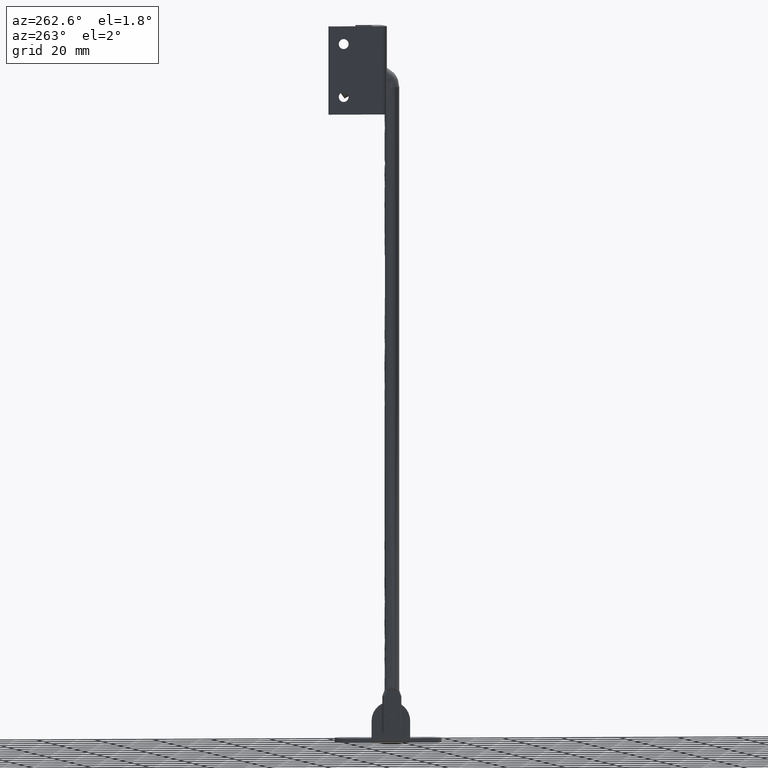
[diagram: clean part render]
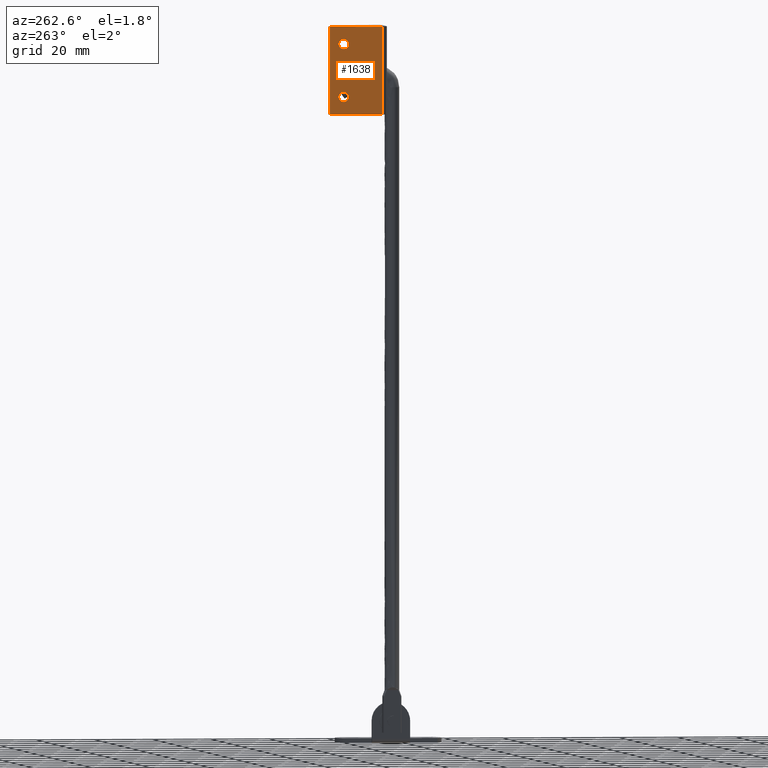
[diagram: same view with one face highlighted and labeled with its STEP entity id]
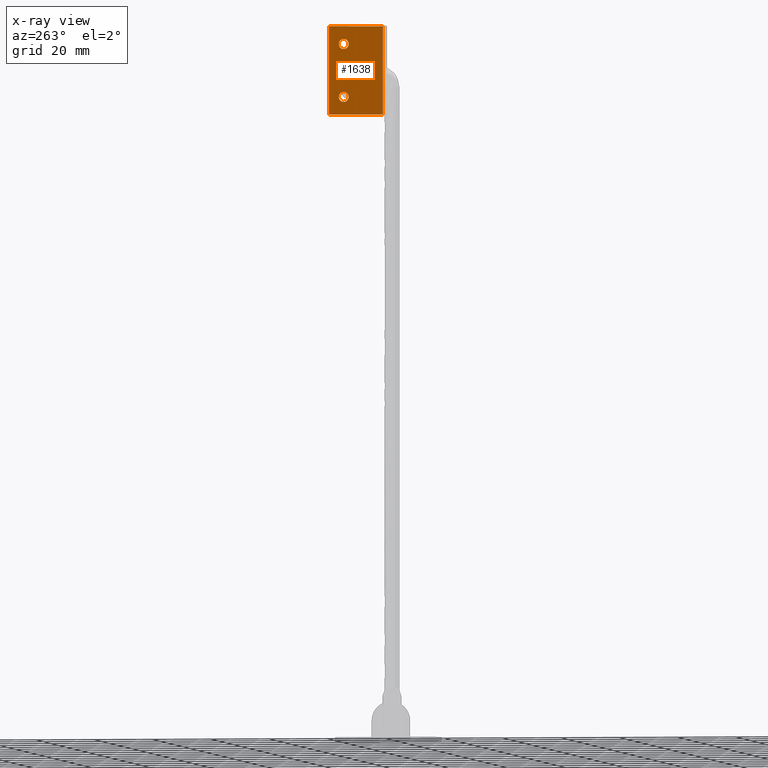
[diagram: x-ray of the same camera — body ghosted, the highlighted face saturated]
A machine part, auxiliary view. The second image highlights one B-rep face of the part: STEP entity #1638.
The next image is the same camera in x-ray: the body ghosted, the highlighted face saturated — about 0% of this face is hidden behind the body in this view.
In plain terms, the highlighted face is a freeform B-spline surface patch.
Its self-contained STEP definition (entity closure, byte-faithful):
#528=CARTESIAN_POINT('',(-17.699996999999950,19.188897595232920,222.468214577320400));
#529=VERTEX_POINT('',#528);
#535=CARTESIAN_POINT('',(-17.699996999999950,17.500000000000000,220.962186000000000));
#536=VERTEX_POINT('',#535);
#537=CARTESIAN_POINT('',(-17.699996999999957,19.188897595232927,222.468214577320370));
#538=CARTESIAN_POINT('',(-17.699996999999957,19.015928580964555,220.962186000000060));
#539=CARTESIAN_POINT('',(-17.699996999999950,17.500000000000000,220.962186000000000));
#547=(BOUNDED_CURVE()B_SPLINE_CURVE(2,(#537,#538,#539),.UNSPECIFIED.,.F.,.U.)B_SPLINE_CURVE_WITH_KNOTS((3,3),(0.269767814520812,0.500000000000000),.UNSPECIFIED.)CURVE()GEOMETRIC_REPRESENTATION_ITEM()RATIONAL_B_SPLINE_CURVE((0.957343620779382,0.730266216482180,1.0))REPRESENTATION_ITEM(''));
#548=EDGE_CURVE('',#529,#536,#547,.T.);
#550=CARTESIAN_POINT('',(-17.699996999999950,15.803170842684089,222.558403482770100));
#551=VERTEX_POINT('',#550);
#552=CARTESIAN_POINT('',(-17.699996999999950,17.500000000000000,220.962186000000000));
#553=CARTESIAN_POINT('',(-17.699996999999946,15.900799686299381,220.962185999999950));
#554=CARTESIAN_POINT('',(-17.699996999999943,15.803170842684096,222.558403482770100));
#562=(BOUNDED_CURVE()B_SPLINE_CURVE(2,(#552,#553,#554),.UNSPECIFIED.,.F.,.U.)B_SPLINE_CURVE_WITH_KNOTS((3,3),(0.500000000000000,0.739332962237762),.UNSPECIFIED.)CURVE()GEOMETRIC_REPRESENTATION_ITEM()RATIONAL_B_SPLINE_CURVE((1.0,0.719603993288094,0.976072041664186))REPRESENTATION_ITEM(''));
#563=EDGE_CURVE('',#536,#551,#562,.T.);
#658=CARTESIAN_POINT('',(-17.699996999999950,17.500000000000000,224.362186000000010));
#659=VERTEX_POINT('',#658);
#660=CARTESIAN_POINT('',(-17.699996999999950,15.803170842684096,222.558403482770130));
#661=CARTESIAN_POINT('',(-17.699996999999957,15.800000000000006,222.610246302371710));
#662=CARTESIAN_POINT('',(-17.699996999999950,15.800000000000001,222.662185999999990));
#663=CARTESIAN_POINT('',(-17.699996999999946,15.799999999999997,224.362186000000040));
#664=CARTESIAN_POINT('',(-17.699996999999950,17.500000000000000,224.362186000000010));
#672=(BOUNDED_CURVE()B_SPLINE_CURVE(2,(#660,#661,#662,#663,#664),.UNSPECIFIED.,.F.,.U.)B_SPLINE_CURVE_WITH_KNOTS((3,2,3),(0.739332962237762,0.750000000000000,1.0),.UNSPECIFIED.)CURVE()GEOMETRIC_REPRESENTATION_ITEM()RATIONAL_B_SPLINE_CURVE((0.976072041664187,0.987502787898454,1.0,0.707106781186548,1.0))REPRESENTATION_ITEM(''));
#673=EDGE_CURVE('',#551,#659,#672,.T.);
#675=CARTESIAN_POINT('',(-17.699996999999950,17.500000000000000,224.362186000000010));
#676=CARTESIAN_POINT('',(-17.699996999999946,19.200000000000010,224.362186000000040));
#677=CARTESIAN_POINT('',(-17.699996999999950,19.199999999999999,222.662185999999990));
#678=CARTESIAN_POINT('',(-17.699996999999950,19.200000000000003,222.564882404947440));
#679=CARTESIAN_POINT('',(-17.699996999999954,19.188897595232920,222.468214577320400));
#687=(BOUNDED_CURVE()B_SPLINE_CURVE(2,(#675,#676,#677,#678,#679),.UNSPECIFIED.,.F.,.U.)B_SPLINE_CURVE_WITH_KNOTS((3,2,3),(0.0,0.250000000000000,0.269767814520812),.UNSPECIFIED.)CURVE()GEOMETRIC_REPRESENTATION_ITEM()RATIONAL_B_SPLINE_CURVE((1.0,0.707106781186548,1.0,0.976840564704368,0.957343620779382))REPRESENTATION_ITEM(''));
#688=EDGE_CURVE('',#659,#529,#687,.T.);
#856=CARTESIAN_POINT('',(-17.699996999999950,19.188897595232920,240.468214577320400));
#857=VERTEX_POINT('',#856);
#863=CARTESIAN_POINT('',(-17.699996999999950,17.500000000000000,238.962186000000000));
#864=VERTEX_POINT('',#863);
#865=CARTESIAN_POINT('',(-17.699996999999957,19.188897595232927,240.468214577320420));
#866=CARTESIAN_POINT('',(-17.699996999999950,19.015928580964562,238.962186000000000));
#867=CARTESIAN_POINT('',(-17.699996999999950,17.500000000000000,238.962186000000000));
#875=(BOUNDED_CURVE()B_SPLINE_CURVE(2,(#865,#866,#867),.UNSPECIFIED.,.F.,.U.)B_SPLINE_CURVE_WITH_KNOTS((3,3),(0.269767814520812,0.500000000000000),.UNSPECIFIED.)CURVE()GEOMETRIC_REPRESENTATION_ITEM()RATIONAL_B_SPLINE_CURVE((0.957343620779384,0.730266216482179,1.0))REPRESENTATION_ITEM(''));
#876=EDGE_CURVE('',#857,#864,#875,.T.);
#878=CARTESIAN_POINT('',(-17.699996999999950,15.803170842684089,240.558403482769990));
#879=VERTEX_POINT('',#878);
#880=CARTESIAN_POINT('',(-17.699996999999950,17.500000000000000,238.962186000000000));
#881=CARTESIAN_POINT('',(-17.699996999999954,15.900799686299408,238.962186000000090));
#882=CARTESIAN_POINT('',(-17.699996999999957,15.803170842684089,240.558403482769990));
#890=(BOUNDED_CURVE()B_SPLINE_CURVE(2,(#880,#881,#882),.UNSPECIFIED.,.F.,.U.)B_SPLINE_CURVE_WITH_KNOTS((3,3),(0.500000000000000,0.739332962237759),.UNSPECIFIED.)CURVE()GEOMETRIC_REPRESENTATION_ITEM()RATIONAL_B_SPLINE_CURVE((1.0,0.719603993288097,0.976072041664181))REPRESENTATION_ITEM(''));
#891=EDGE_CURVE('',#864,#879,#890,.T.);
#986=CARTESIAN_POINT('',(-17.699996999999950,17.500000000000000,242.362186000000010));
#987=VERTEX_POINT('',#986);
#988=CARTESIAN_POINT('',(-17.699996999999950,15.803170842684091,240.558403482770070));
#989=CARTESIAN_POINT('',(-17.699996999999954,15.800000000000004,240.610246302371620));
#990=CARTESIAN_POINT('',(-17.699996999999950,15.800000000000001,240.662185999999990));
#991=CARTESIAN_POINT('',(-17.699996999999946,15.799999999999997,242.362186000000090));
#992=CARTESIAN_POINT('',(-17.699996999999950,17.500000000000000,242.362186000000010));
#1000=(BOUNDED_CURVE()B_SPLINE_CURVE(2,(#988,#989,#990,#991,#992),.UNSPECIFIED.,.F.,.U.)B_SPLINE_CURVE_WITH_KNOTS((3,2,3),(0.739332962237758,0.750000000000000,1.0),.UNSPECIFIED.)CURVE()GEOMETRIC_REPRESENTATION_ITEM()RATIONAL_B_SPLINE_CURVE((0.976072041664179,0.987502787898450,1.0,0.707106781186548,1.0))REPRESENTATION_ITEM(''));
#1001=EDGE_CURVE('',#879,#987,#1000,.T.);
#1003=CARTESIAN_POINT('',(-17.699996999999950,17.500000000000000,242.362186000000010));
#1004=CARTESIAN_POINT('',(-17.699996999999946,19.200000000000010,242.362186000000090));
#1005=CARTESIAN_POINT('',(-17.699996999999950,19.199999999999999,240.662185999999990));
#1006=CARTESIAN_POINT('',(-17.699996999999946,19.199999999999999,240.564882404947440));
#1007=CARTESIAN_POINT('',(-17.699996999999957,19.188897595232927,240.468214577320420));
#1015=(BOUNDED_CURVE()B_SPLINE_CURVE(2,(#1003,#1004,#1005,#1006,#1007),.UNSPECIFIED.,.F.,.U.)B_SPLINE_CURVE_WITH_KNOTS((3,2,3),(0.0,0.250000000000000,0.269767814520812),.UNSPECIFIED.)CURVE()GEOMETRIC_REPRESENTATION_ITEM()RATIONAL_B_SPLINE_CURVE((1.0,0.707106781186548,1.0,0.976840564704369,0.957343620779384))REPRESENTATION_ITEM(''));
#1016=EDGE_CURVE('',#987,#857,#1015,.T.);
#1338=CARTESIAN_POINT('',(-17.699996999999900,4.099999999999890,216.662185999999990));
#1339=VERTEX_POINT('',#1338);
#1360=CARTESIAN_POINT('',(-17.699996999999900,4.099999999999890,246.662185999999990));
#1361=VERTEX_POINT('',#1360);
#1375=CARTESIAN_POINT('',(-17.699996999999900,4.099999999999890,216.662185999999990));
#1376=CARTESIAN_POINT('',(-17.699996999999900,4.099999999999890,246.662185999999990));
#1377=QUASI_UNIFORM_CURVE('',1,(#1375,#1376),.UNSPECIFIED.,.F.,.U.);
#1378=EDGE_CURVE('',#1339,#1361,#1377,.T.);
#1388=CARTESIAN_POINT('',(-17.699996999999900,22.500000000000000,246.662185999999990));
#1389=VERTEX_POINT('',#1388);
#1390=CARTESIAN_POINT('',(-17.699996999999900,22.500000000000000,246.662185999999990));
#1391=CARTESIAN_POINT('',(-17.699996999999900,4.099999999999890,246.662185999999990));
#1392=QUASI_UNIFORM_CURVE('',1,(#1390,#1391),.UNSPECIFIED.,.F.,.U.);
#1393=EDGE_CURVE('',#1389,#1361,#1392,.T.);
#1456=CARTESIAN_POINT('',(-17.699996999999900,22.500000000000000,216.662185999999990));
#1457=VERTEX_POINT('',#1456);
#1458=CARTESIAN_POINT('',(-17.699996999999900,22.500000000000000,216.662185999999990));
#1459=CARTESIAN_POINT('',(-17.699996999999900,4.099999999999890,216.662185999999990));
#1460=QUASI_UNIFORM_CURVE('',1,(#1458,#1459),.UNSPECIFIED.,.F.,.U.);
#1461=EDGE_CURVE('',#1457,#1339,#1460,.T.);
#1607=CARTESIAN_POINT('',(-17.699996999999900,22.500000000000000,216.662185999999990));
#1608=CARTESIAN_POINT('',(-17.699996999999900,22.500000000000000,246.662185999999990));
#1609=QUASI_UNIFORM_CURVE('',1,(#1607,#1608),.UNSPECIFIED.,.F.,.U.);
#1610=EDGE_CURVE('',#1457,#1389,#1609,.T.);
#1615=CARTESIAN_POINT('',(-17.699996999999900,23.419079964337239,215.163685494908800));
#1616=CARTESIAN_POINT('',(-17.699996999999900,3.180919542136198,215.163685494908800));
#1617=CARTESIAN_POINT('',(-17.699996999999900,23.419079964337239,248.160686773312190));
#1618=CARTESIAN_POINT('',(-17.699996999999900,3.180919542136198,248.160686773312190));
#1619=B_SPLINE_SURFACE_WITH_KNOTS('',1,1,((#1615,#1617),(#1616,#1618)),.UNSPECIFIED.,.F.,.F.,.U.,(2,2),(2,2),(0.0,20.238160422201041),(0.0,32.997001278403452),.UNSPECIFIED.);
#1620=ORIENTED_EDGE('',*,*,#1461,.T.);
#1621=ORIENTED_EDGE('',*,*,#1378,.T.);
#1622=ORIENTED_EDGE('',*,*,#1393,.F.);
#1623=ORIENTED_EDGE('',*,*,#1610,.F.);
#1624=EDGE_LOOP('',(#1620,#1621,#1622,#1623));
#1625=FACE_OUTER_BOUND('',#1624,.T.);
#1626=ORIENTED_EDGE('',*,*,#891,.F.);
#1627=ORIENTED_EDGE('',*,*,#876,.F.);
#1628=ORIENTED_EDGE('',*,*,#1016,.F.);
#1629=ORIENTED_EDGE('',*,*,#1001,.F.);
#1630=EDGE_LOOP('',(#1626,#1627,#1628,#1629));
#1631=FACE_BOUND('',#1630,.T.);
#1632=ORIENTED_EDGE('',*,*,#563,.F.);
#1633=ORIENTED_EDGE('',*,*,#548,.F.);
#1634=ORIENTED_EDGE('',*,*,#688,.F.);
#1635=ORIENTED_EDGE('',*,*,#673,.F.);
#1636=EDGE_LOOP('',(#1632,#1633,#1634,#1635));
#1637=FACE_BOUND('',#1636,.T.);
#1638=ADVANCED_FACE('',(#1625,#1631,#1637),#1619,.T.);